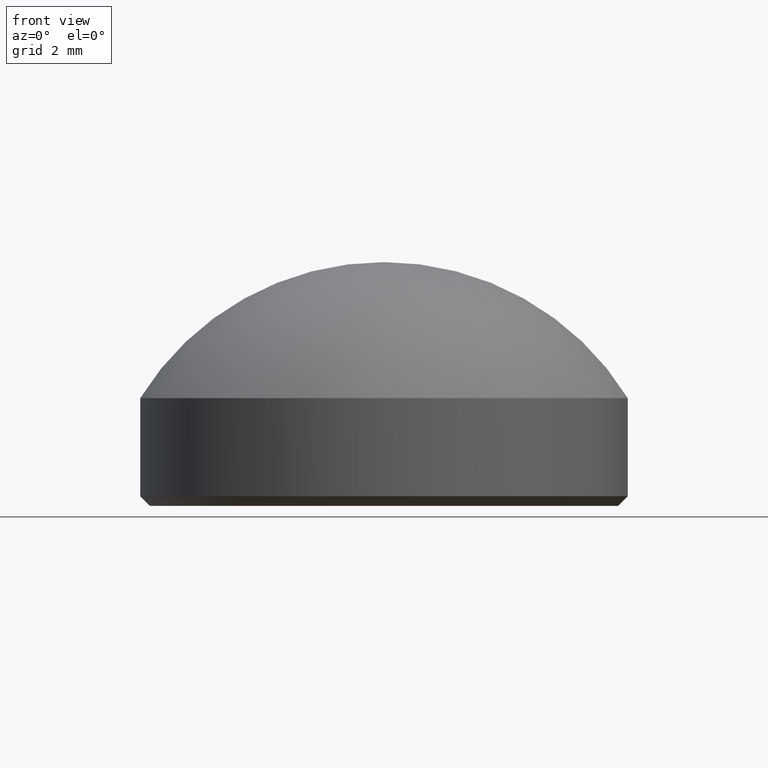
[diagram: clean part render]
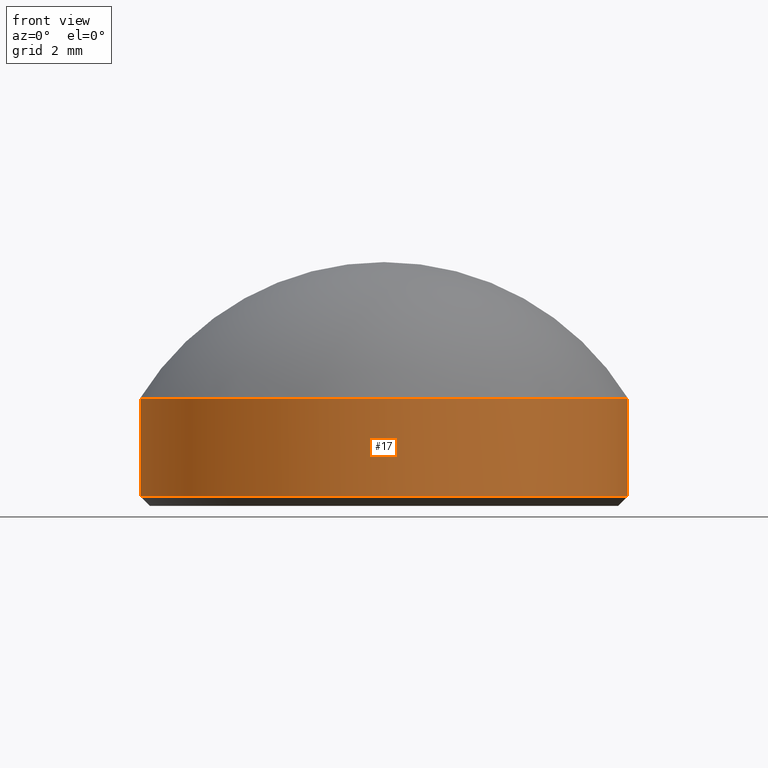
[diagram: same view with one face highlighted and labeled with its STEP entity id]
A machine part, front view. The second image highlights one B-rep face of the part: STEP entity #17.
In plain terms, the highlighted cylindrical surface (partial cylindrical patch) has radius 5 mm, axis along (-0, -0, -1).
Its self-contained STEP definition (entity closure, byte-faithful):
#2 = EDGE_CURVE ( 'NONE', #148, #28, #109, .T. ) ;
#5 = EDGE_CURVE ( 'NONE', #32, #28, #160, .T. ) ;
#7 = CARTESIAN_POINT ( 'NONE',  ( -5.000000000000000000, 0.000000000000000000, 2.209999999999999964 ) ) ;
#17 = ADVANCED_FACE ( 'NONE', ( #170 ), #81, .T. ) ;
#28 = VERTEX_POINT ( 'NONE', #121 ) ;
#32 = VERTEX_POINT ( 'NONE', #123 ) ;
#38 = DIRECTION ( 'NONE',  ( -0.000000000000000000, -0.000000000000000000, 1.000000000000000000 ) ) ;
#40 = CARTESIAN_POINT ( 'NONE',  ( 0.000000000000000000, 0.000000000000000000, 2.209999999999999964 ) ) ;
#48 = AXIS2_PLACEMENT_3D ( 'NONE', #59, #38, #155 ) ;
#49 = DIRECTION ( 'NONE',  ( 1.000000000000000000, 0.000000000000000000, 0.000000000000000000 ) ) ;
#59 = CARTESIAN_POINT ( 'NONE',  ( 0.000000000000000000, 0.000000000000000000, 0.1999999999999987899 ) ) ;
#79 = CARTESIAN_POINT ( 'NONE',  ( -5.000000000000000000, 0.000000000000000000, 2.209999999999999964 ) ) ;
#81 = CYLINDRICAL_SURFACE ( 'NONE', #134, 5.000000000000000000 ) ;
#82 = CARTESIAN_POINT ( 'NONE',  ( 5.000000000000000000, 6.123233995736766282E-16, 2.209999999999999964 ) ) ;
#96 = VECTOR ( 'NONE', #177, 1000.000000000000000 ) ;
#104 = VERTEX_POINT ( 'NONE', #79 ) ;
#105 = EDGE_CURVE ( 'NONE', #104, #148, #153, .T. ) ;
#106 = ORIENTED_EDGE ( 'NONE', *, *, #5, .T. ) ;
#109 = LINE ( 'NONE', #82, #150 ) ;
#117 = LINE ( 'NONE', #7, #96 ) ;
#118 = CARTESIAN_POINT ( 'NONE',  ( 5.000000000000000000, 6.123233995736766282E-16, 2.209999999999999964 ) ) ;
#121 = CARTESIAN_POINT ( 'NONE',  ( 5.000000000000000000, 6.123233995736766282E-16, 0.1999999999999987899 ) ) ;
#123 = CARTESIAN_POINT ( 'NONE',  ( -5.000000000000000000, 0.000000000000000000, 0.1999999999999987899 ) ) ;
#129 = CARTESIAN_POINT ( 'NONE',  ( 0.000000000000000000, 0.000000000000000000, 2.209999999999999964 ) ) ;
#133 = ORIENTED_EDGE ( 'NONE', *, *, #105, .F. ) ;
#134 = AXIS2_PLACEMENT_3D ( 'NONE', #40, #188, #168 ) ;
#141 = DIRECTION ( 'NONE',  ( -0.000000000000000000, -0.000000000000000000, -1.000000000000000000 ) ) ;
#145 = AXIS2_PLACEMENT_3D ( 'NONE', #129, #193, #49 ) ;
#148 = VERTEX_POINT ( 'NONE', #118 ) ;
#150 = VECTOR ( 'NONE', #141, 1000.000000000000000 ) ;
#153 = CIRCLE ( 'NONE', #145, 5.000000000000000000 ) ;
#155 = DIRECTION ( 'NONE',  ( 1.000000000000000000, 0.000000000000000000, 0.000000000000000000 ) ) ;
#160 = CIRCLE ( 'NONE', #48, 5.000000000000000000 ) ;
#168 = DIRECTION ( 'NONE',  ( -1.000000000000000000, 0.000000000000000000, 0.000000000000000000 ) ) ;
#170 = FACE_OUTER_BOUND ( 'NONE', #180, .T. ) ;
#176 = EDGE_CURVE ( 'NONE', #104, #32, #117, .T. ) ;
#177 = DIRECTION ( 'NONE',  ( -0.000000000000000000, -0.000000000000000000, -1.000000000000000000 ) ) ;
#180 = EDGE_LOOP ( 'NONE', ( #196, #133, #197, #106 ) ) ;
#188 = DIRECTION ( 'NONE',  ( -0.000000000000000000, -0.000000000000000000, -1.000000000000000000 ) ) ;
#193 = DIRECTION ( 'NONE',  ( 0.000000000000000000, 0.000000000000000000, 1.000000000000000000 ) ) ;
#196 = ORIENTED_EDGE ( 'NONE', *, *, #2, .F. ) ;
#197 = ORIENTED_EDGE ( 'NONE', *, *, #176, .T. ) ;